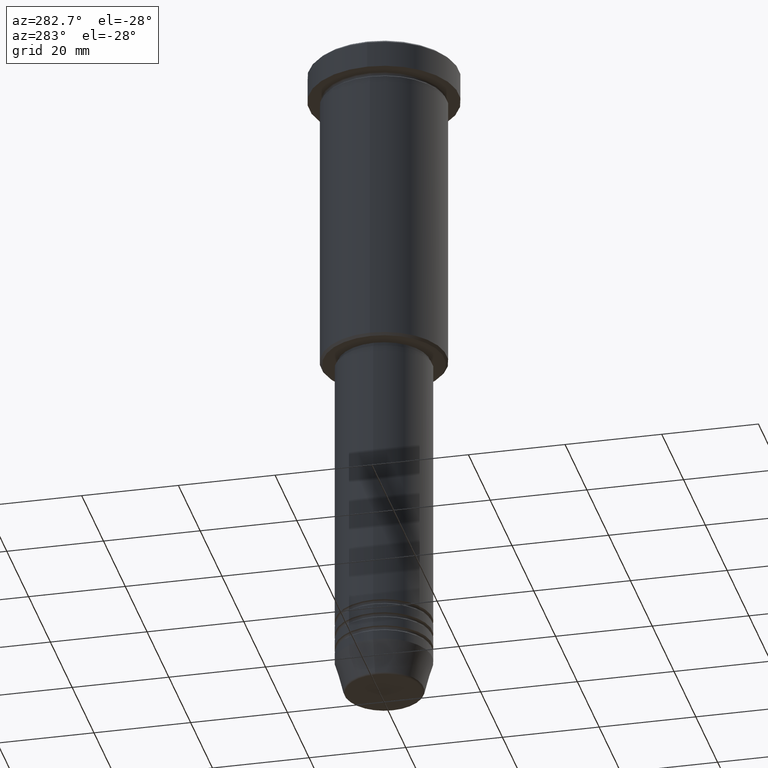
[diagram: clean part render]
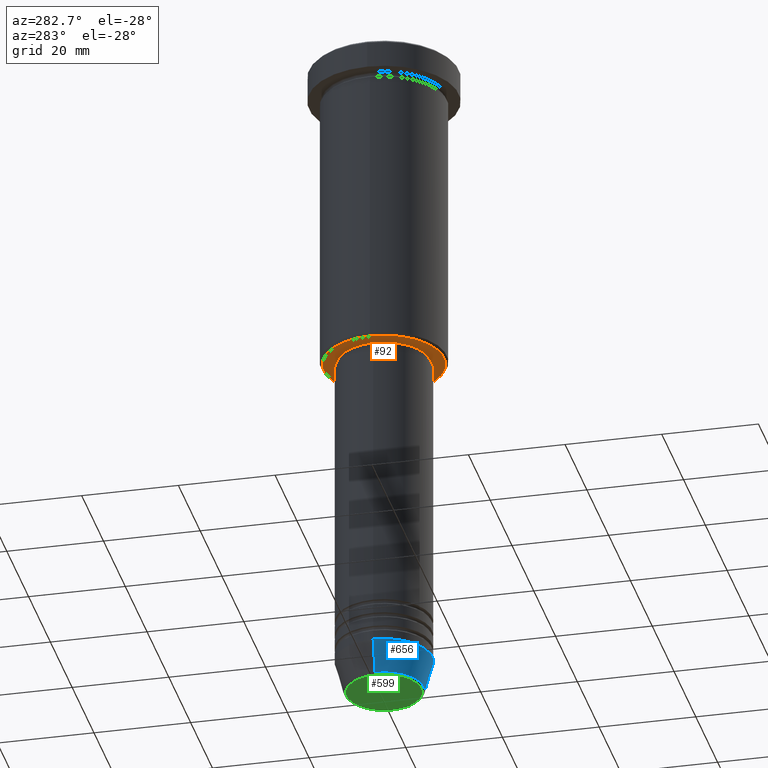
[diagram: same view with three faces highlighted in distinct colors, each labeled with its STEP entity id]
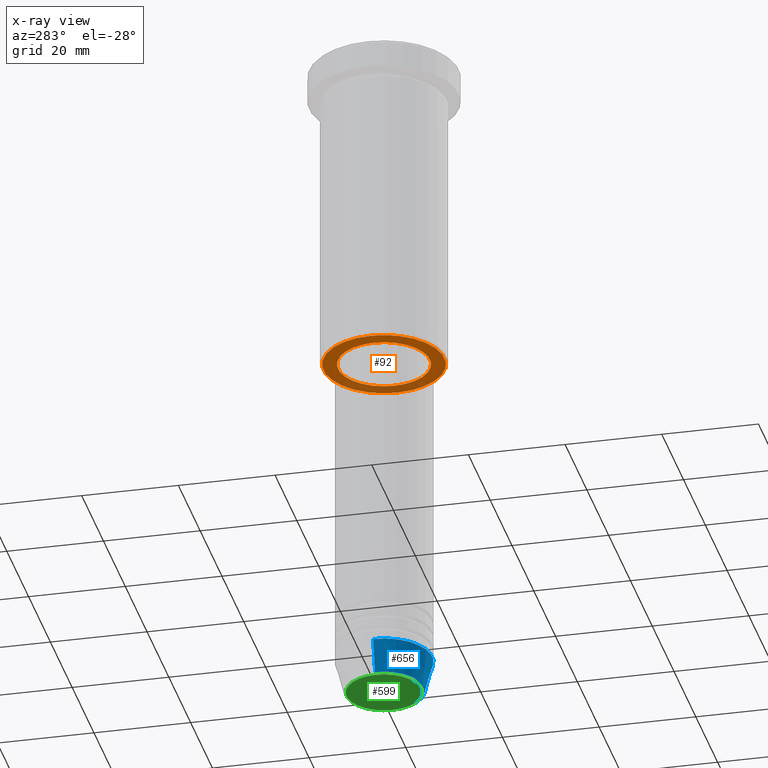
[diagram: x-ray of the same camera — body ghosted, the three highlighted faces saturated]
A machine part, auxiliary view with three faces highlighted in distinct colors.
The next image is the same camera in x-ray (body ghosted, the three faces saturated) — at least one of them is partly hidden behind the body in this view.
Their STEP definitions:

[orange] entity #92 — the highlighted planar face has unit normal (0, 0, -1).
#34 = CARTESIAN_POINT ( 'NONE',  ( 0.000000000000000000, 0.000000000000000000, -66.00000000000000000 ) ) ;
#47 = DIRECTION ( 'NONE',  ( -1.000000000000000000, 0.000000000000000000, -0.000000000000000000 ) ) ;
#82 = AXIS2_PLACEMENT_3D ( 'NONE', #194, #565, #917 ) ;
#86 = EDGE_LOOP ( 'NONE', ( #615, #336 ) ) ;
#92 = ADVANCED_FACE ( 'NONE', ( #345, #865 ), #1137, .T. ) ;
#95 = DIRECTION ( 'NONE',  ( -1.000000000000000000, 0.000000000000000000, 0.000000000000000000 ) ) ;
#114 = EDGE_CURVE ( 'NONE', #976, #301, #316, .T. ) ;
#122 = AXIS2_PLACEMENT_3D ( 'NONE', #1059, #685, #1131 ) ;
#194 = CARTESIAN_POINT ( 'NONE',  ( 0.000000000000000000, 0.000000000000000000, -66.00000000000000000 ) ) ;
#196 = CIRCLE ( 'NONE', #82, 9.500000000000000000 ) ;
#227 = EDGE_CURVE ( 'NONE', #462, #625, #196, .T. ) ;
#255 = EDGE_CURVE ( 'NONE', #301, #976, #318, .T. ) ;
#256 = ORIENTED_EDGE ( 'NONE', *, *, #227, .T. ) ;
#301 = VERTEX_POINT ( 'NONE', #658 ) ;
#316 = CIRCLE ( 'NONE', #122, 12.49999999999996980 ) ;
#318 = CIRCLE ( 'NONE', #975, 12.49999999999996980 ) ;
#330 = DIRECTION ( 'NONE',  ( 0.000000000000000000, 0.000000000000000000, -1.000000000000000000 ) ) ;
#336 = ORIENTED_EDGE ( 'NONE', *, *, #255, .T. ) ;
#345 = FACE_OUTER_BOUND ( 'NONE', #86, .T. ) ;
#396 = CIRCLE ( 'NONE', #1019, 9.500000000000000000 ) ;
#407 = DIRECTION ( 'NONE',  ( 1.000000000000000000, 0.000000000000000000, 0.000000000000000000 ) ) ;
#420 = EDGE_CURVE ( 'NONE', #625, #462, #396, .T. ) ;
#462 = VERTEX_POINT ( 'NONE', #963 ) ;
#499 = CARTESIAN_POINT ( 'NONE',  ( 12.49999999999996980, 0.000000000000000000, -66.00000000000000000 ) ) ;
#565 = DIRECTION ( 'NONE',  ( -0.000000000000000000, -0.000000000000000000, 1.000000000000000000 ) ) ;
#574 = ORIENTED_EDGE ( 'NONE', *, *, #420, .T. ) ;
#606 = CARTESIAN_POINT ( 'NONE',  ( 0.000000000000000000, 13.00000000000000000, -66.00000000000000000 ) ) ;
#615 = ORIENTED_EDGE ( 'NONE', *, *, #114, .T. ) ;
#625 = VERTEX_POINT ( 'NONE', #813 ) ;
#635 = AXIS2_PLACEMENT_3D ( 'NONE', #606, #330, #47 ) ;
#658 = CARTESIAN_POINT ( 'NONE',  ( -12.49999999999996980, 1.561424668912873336E-15, -66.00000000000000000 ) ) ;
#669 = DIRECTION ( 'NONE',  ( -0.000000000000000000, -0.000000000000000000, 1.000000000000000000 ) ) ;
#685 = DIRECTION ( 'NONE',  ( 0.000000000000000000, 0.000000000000000000, -1.000000000000000000 ) ) ;
#752 = DIRECTION ( 'NONE',  ( 0.000000000000000000, 0.000000000000000000, -1.000000000000000000 ) ) ;
#813 = CARTESIAN_POINT ( 'NONE',  ( 9.500000000000000000, 0.000000000000000000, -66.00000000000000000 ) ) ;
#865 = FACE_BOUND ( 'NONE', #956, .T. ) ;
#910 = CARTESIAN_POINT ( 'NONE',  ( 0.000000000000000000, 0.000000000000000000, -66.00000000000000000 ) ) ;
#917 = DIRECTION ( 'NONE',  ( 1.000000000000000000, 0.000000000000000000, 0.000000000000000000 ) ) ;
#956 = EDGE_LOOP ( 'NONE', ( #574, #256 ) ) ;
#963 = CARTESIAN_POINT ( 'NONE',  ( -9.500000000000000000, 1.163414459189985485E-15, -66.00000000000000000 ) ) ;
#975 = AXIS2_PLACEMENT_3D ( 'NONE', #910, #752, #95 ) ;
#976 = VERTEX_POINT ( 'NONE', #499 ) ;
#1019 = AXIS2_PLACEMENT_3D ( 'NONE', #34, #669, #407 ) ;
#1059 = CARTESIAN_POINT ( 'NONE',  ( 0.000000000000000000, 0.000000000000000000, -66.00000000000000000 ) ) ;
#1131 = DIRECTION ( 'NONE',  ( -1.000000000000000000, 0.000000000000000000, 0.000000000000000000 ) ) ;
#1137 = PLANE ( 'NONE',  #635 ) ;

[blue] entity #656 — the highlighted conical surface has half-angle 15 deg.
#89 = EDGE_LOOP ( 'NONE', ( #1065, #1179, #1056, #224 ) ) ;
#108 = CARTESIAN_POINT ( 'NONE',  ( -8.223655072137191269, 1.115877042642912054E-15, -140.6294095225512706 ) ) ;
#121 = CIRCLE ( 'NONE', #1146, 10.00000000000000000 ) ;
#153 = VERTEX_POINT ( 'NONE', #1102 ) ;
#197 = VECTOR ( 'NONE', #502, 1000.000000000000000 ) ;
#224 = ORIENTED_EDGE ( 'NONE', *, *, #954, .F. ) ;
#230 = DIRECTION ( 'NONE',  ( 1.000000000000000000, 0.000000000000000000, 0.000000000000000000 ) ) ;
#262 = CARTESIAN_POINT ( 'NONE',  ( -10.00000000000000000, 1.224646799147353256E-15, -134.0000000000000000 ) ) ;
#328 = DIRECTION ( 'NONE',  ( -0.000000000000000000, -0.000000000000000000, 1.000000000000000000 ) ) ;
#450 = EDGE_CURVE ( 'NONE', #1143, #829, #1121, .T. ) ;
#456 = FACE_OUTER_BOUND ( 'NONE', #89, .T. ) ;
#457 = VERTEX_POINT ( 'NONE', #594 ) ;
#502 = DIRECTION ( 'NONE',  ( -0.2588190451025213501, 3.169619151431772337E-17, 0.9659258262890680902 ) ) ;
#578 = AXIS2_PLACEMENT_3D ( 'NONE', #1180, #807, #1094 ) ;
#594 = CARTESIAN_POINT ( 'NONE',  ( 10.00000000000000000, 0.000000000000000000, -134.0000000000000000 ) ) ;
#603 = CARTESIAN_POINT ( 'NONE',  ( 0.000000000000000000, 0.000000000000000000, -134.0000000000000000 ) ) ;
#653 = CIRCLE ( 'NONE', #746, 8.223655072137191269 ) ;
#656 = ADVANCED_FACE ( 'NONE', ( #456 ), #705, .T. ) ;
#705 = CONICAL_SURFACE ( 'NONE', #578, 10.00000000000000000, 0.2617993877991500740 ) ;
#746 = AXIS2_PLACEMENT_3D ( 'NONE', #1000, #1006, #916 ) ;
#804 = LINE ( 'NONE', #1088, #820 ) ;
#807 = DIRECTION ( 'NONE',  ( -0.000000000000000000, -0.000000000000000000, 1.000000000000000000 ) ) ;
#820 = VECTOR ( 'NONE', #1170, 1000.000000000000000 ) ;
#829 = VERTEX_POINT ( 'NONE', #262 ) ;
#916 = DIRECTION ( 'NONE',  ( 1.000000000000000000, 0.000000000000000000, 0.000000000000000000 ) ) ;
#954 = EDGE_CURVE ( 'NONE', #829, #457, #121, .T. ) ;
#1000 = CARTESIAN_POINT ( 'NONE',  ( 0.000000000000000000, 0.000000000000000000, -140.6294095225512706 ) ) ;
#1004 = EDGE_CURVE ( 'NONE', #1143, #153, #653, .T. ) ;
#1006 = DIRECTION ( 'NONE',  ( -0.000000000000000000, -0.000000000000000000, 1.000000000000000000 ) ) ;
#1040 = CARTESIAN_POINT ( 'NONE',  ( -10.00000000000000000, 1.224646799147353256E-15, -134.0000000000000000 ) ) ;
#1056 = ORIENTED_EDGE ( 'NONE', *, *, #1104, .T. ) ;
#1065 = ORIENTED_EDGE ( 'NONE', *, *, #450, .F. ) ;
#1088 = CARTESIAN_POINT ( 'NONE',  ( 10.00000000000000000, 0.000000000000000000, -134.0000000000000000 ) ) ;
#1094 = DIRECTION ( 'NONE',  ( 1.000000000000000000, 0.000000000000000000, 0.000000000000000000 ) ) ;
#1102 = CARTESIAN_POINT ( 'NONE',  ( 8.223655072137191269, 0.000000000000000000, -140.6294095225512706 ) ) ;
#1104 = EDGE_CURVE ( 'NONE', #153, #457, #804, .T. ) ;
#1121 = LINE ( 'NONE', #1040, #197 ) ;
#1143 = VERTEX_POINT ( 'NONE', #108 ) ;
#1146 = AXIS2_PLACEMENT_3D ( 'NONE', #603, #328, #230 ) ;
#1170 = DIRECTION ( 'NONE',  ( 0.2588190451025213501, 0.000000000000000000, 0.9659258262890680902 ) ) ;
#1179 = ORIENTED_EDGE ( 'NONE', *, *, #1004, .T. ) ;
#1180 = CARTESIAN_POINT ( 'NONE',  ( 0.000000000000000000, 0.000000000000000000, -134.0000000000000000 ) ) ;

[green] entity #599 — the highlighted planar face has unit normal (0, -0, 1).
#69 = DIRECTION ( 'NONE',  ( 0.000000000000000000, 0.000000000000000000, -1.000000000000000000 ) ) ;
#70 = VERTEX_POINT ( 'NONE', #965 ) ;
#126 = VERTEX_POINT ( 'NONE', #591 ) ;
#146 = DIRECTION ( 'NONE',  ( 0.000000000000000000, -0.000000000000000000, 1.000000000000000000 ) ) ;
#147 = EDGE_CURVE ( 'NONE', #126, #70, #275, .T. ) ;
#150 = DIRECTION ( 'NONE',  ( 1.000000000000000000, 0.000000000000000000, 0.000000000000000000 ) ) ;
#199 = ORIENTED_EDGE ( 'NONE', *, *, #147, .T. ) ;
#247 = CARTESIAN_POINT ( 'NONE',  ( 0.000000000000000000, 0.000000000000000000, -141.0000000000000000 ) ) ;
#275 = CIRCLE ( 'NONE', #378, 7.740692158992658278 ) ;
#298 = ORIENTED_EDGE ( 'NONE', *, *, #509, .T. ) ;
#358 = CARTESIAN_POINT ( 'NONE',  ( 0.000000000000000000, 0.000000000000000000, -141.0000000000000000 ) ) ;
#378 = AXIS2_PLACEMENT_3D ( 'NONE', #358, #69, #827 ) ;
#509 = EDGE_CURVE ( 'NONE', #70, #126, #960, .T. ) ;
#591 = CARTESIAN_POINT ( 'NONE',  ( -7.740692158992658278, 9.775343368540041107E-16, -141.0000000000000000 ) ) ;
#599 = ADVANCED_FACE ( 'NONE', ( #789 ), #970, .F. ) ;
#692 = AXIS2_PLACEMENT_3D ( 'NONE', #1150, #982, #776 ) ;
#776 = DIRECTION ( 'NONE',  ( 1.000000000000000000, 0.000000000000000000, 0.000000000000000000 ) ) ;
#789 = FACE_OUTER_BOUND ( 'NONE', #1030, .T. ) ;
#827 = DIRECTION ( 'NONE',  ( 1.000000000000000000, 0.000000000000000000, 0.000000000000000000 ) ) ;
#921 = AXIS2_PLACEMENT_3D ( 'NONE', #247, #146, #150 ) ;
#960 = CIRCLE ( 'NONE', #692, 7.740692158992658278 ) ;
#965 = CARTESIAN_POINT ( 'NONE',  ( 7.740692158992658278, 0.000000000000000000, -141.0000000000000000 ) ) ;
#970 = PLANE ( 'NONE',  #921 ) ;
#982 = DIRECTION ( 'NONE',  ( 0.000000000000000000, 0.000000000000000000, -1.000000000000000000 ) ) ;
#1030 = EDGE_LOOP ( 'NONE', ( #298, #199 ) ) ;
#1150 = CARTESIAN_POINT ( 'NONE',  ( 0.000000000000000000, 0.000000000000000000, -141.0000000000000000 ) ) ;